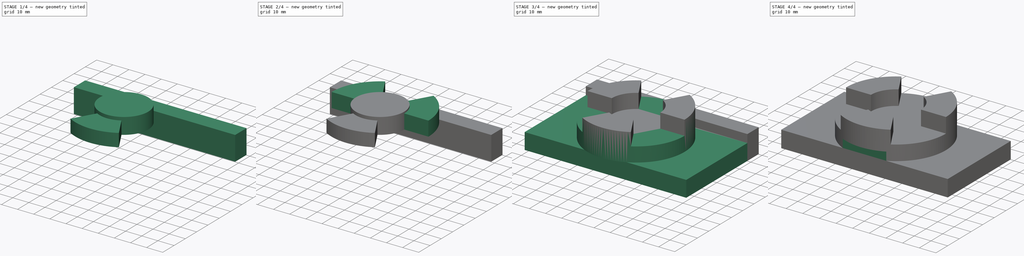
[diagram: build sequence overview — one tinted view per stage of 4, left to right]
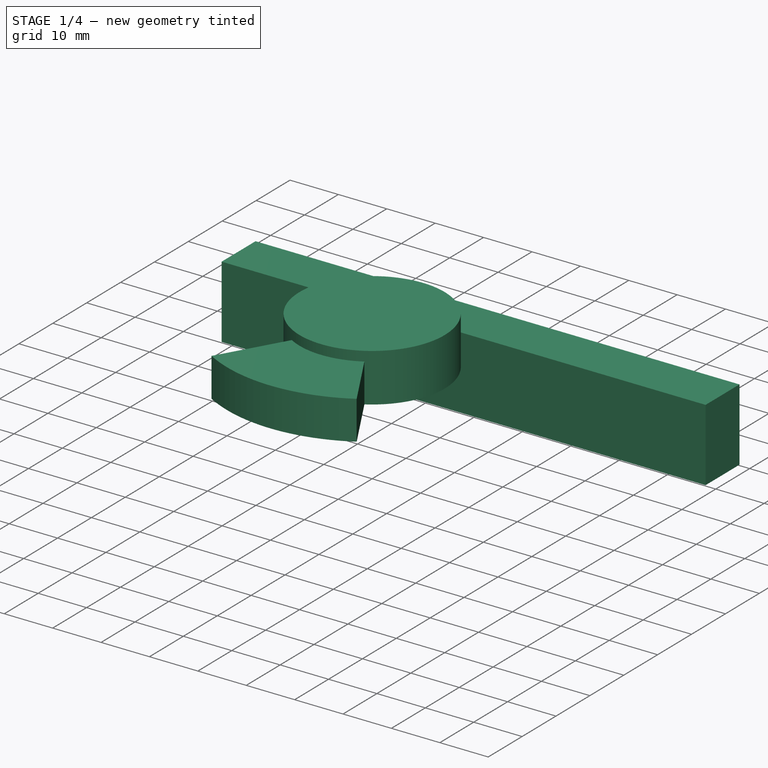
[diagram: stage 1 of 4 — iso view after this stage's code; geometry added in this stage tinted green]
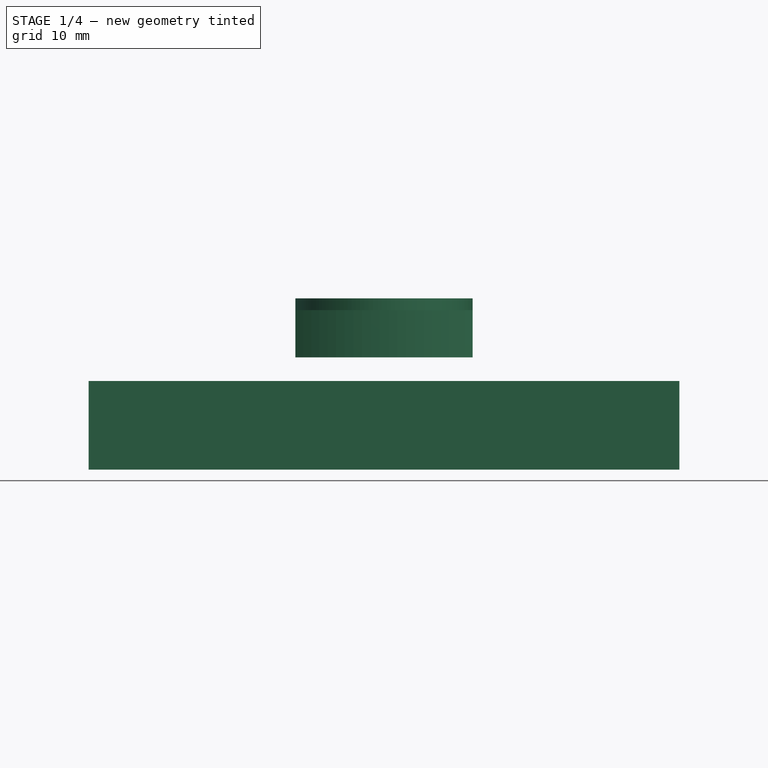
[diagram: stage 1 of 4 — front view after this stage's code; geometry added in this stage tinted green]
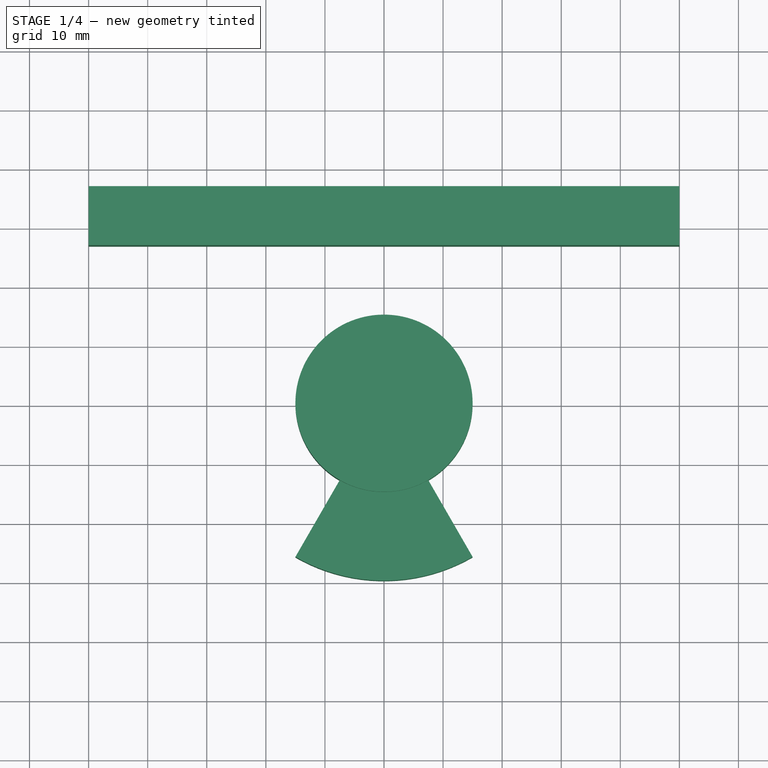
[diagram: stage 1 of 4 — top view after this stage's code; geometry added in this stage tinted green]
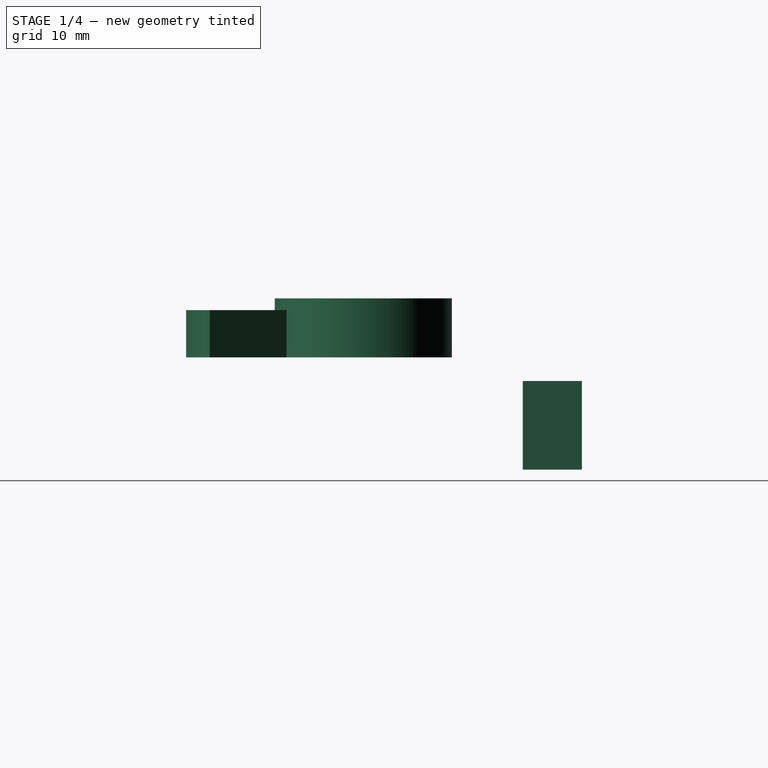
[diagram: stage 1 of 4 — right view after this stage's code; geometry added in this stage tinted green]
FCSTD DOCUMENT  (FreeCAD 0.16R6700 (Git))
Label: ejer6
License: All rights reserved
LicenseURL: http://en.wikipedia.org/wiki/All_rights_reserved
objects: Part::Cylinder×5, Part::Cut×3, Part::MultiFuse×2, Part::Box×2, Sketcher::SketchObject×1, PartDesign::Pad×1, Part::Feature×1
note: 16 computed .brp shape members not serialized (recipe doc carries the construction recipe); baked Part::Feature solids carry a one-line shape summary decoded from their .brp

FEATURE [Part::Cylinder] Cylinder003  label="Cilindro003"
  Angle = 60
  Height = 8
  Placement = pos=(0,0,19) rot=(0,0,1;4.18879rad)
  Radius = 30
FEATURE [Part::Cylinder] Cylinder004  label="Cilindro004"
  Angle = 360
  Height = 10
  Placement = pos=(0,0,19) rot=(0,0,1;0rad)
  Radius = 15
FEATURE [Part::Box] Box001  label="Cubo001"
  Height = 15
  Length = 100
  Placement = pos=(-50,27,0) rot=(0,0,1;0rad)
  Width = 10
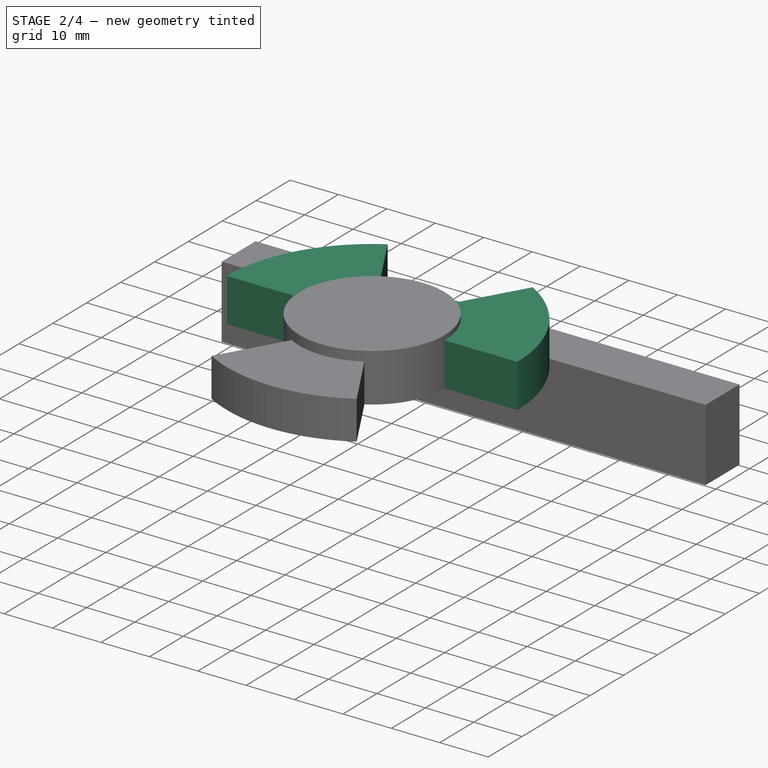
[diagram: stage 2 of 4 — iso view after this stage's code; geometry added in this stage tinted green]
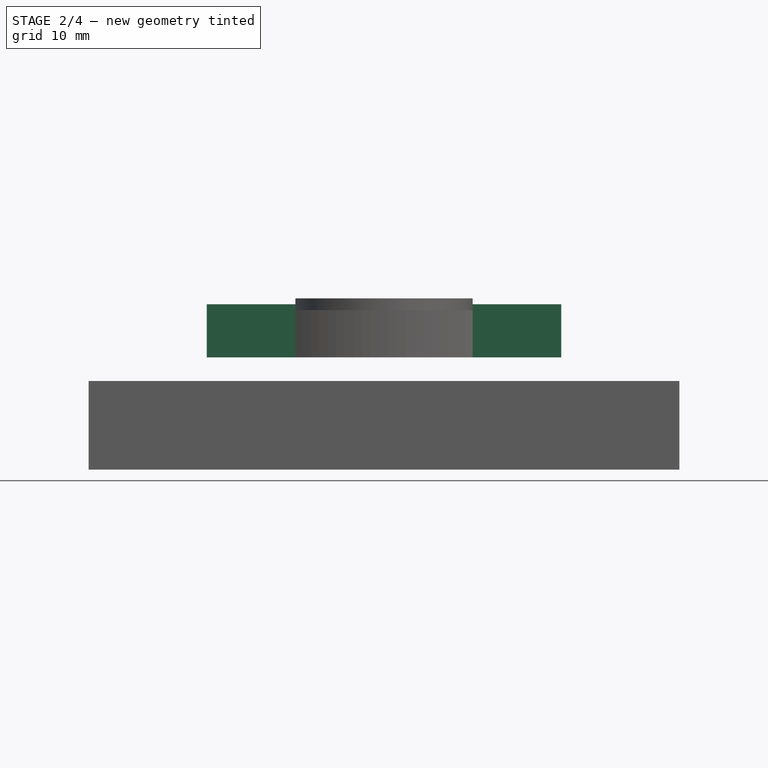
[diagram: stage 2 of 4 — front view after this stage's code; geometry added in this stage tinted green]
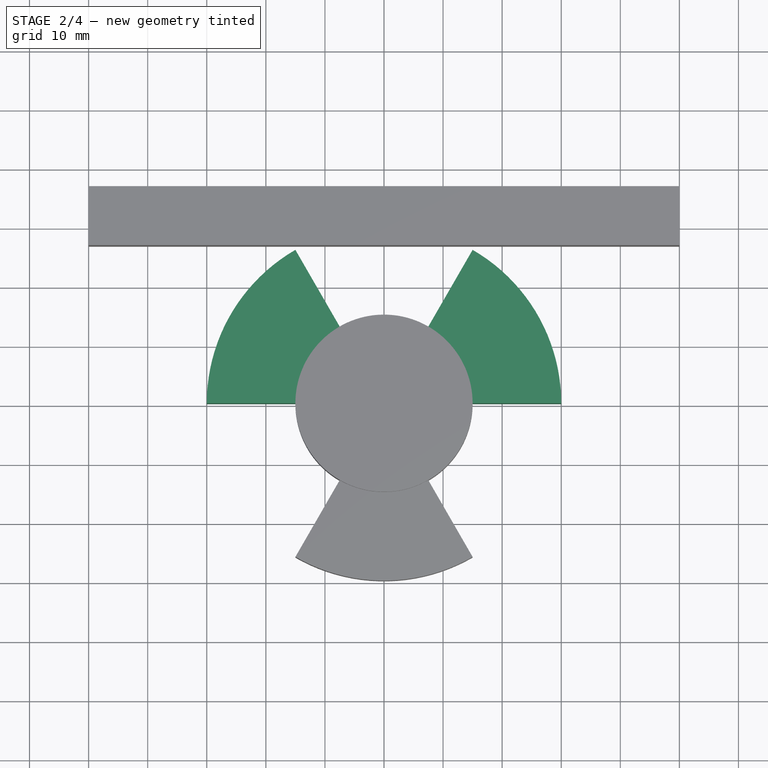
[diagram: stage 2 of 4 — top view after this stage's code; geometry added in this stage tinted green]
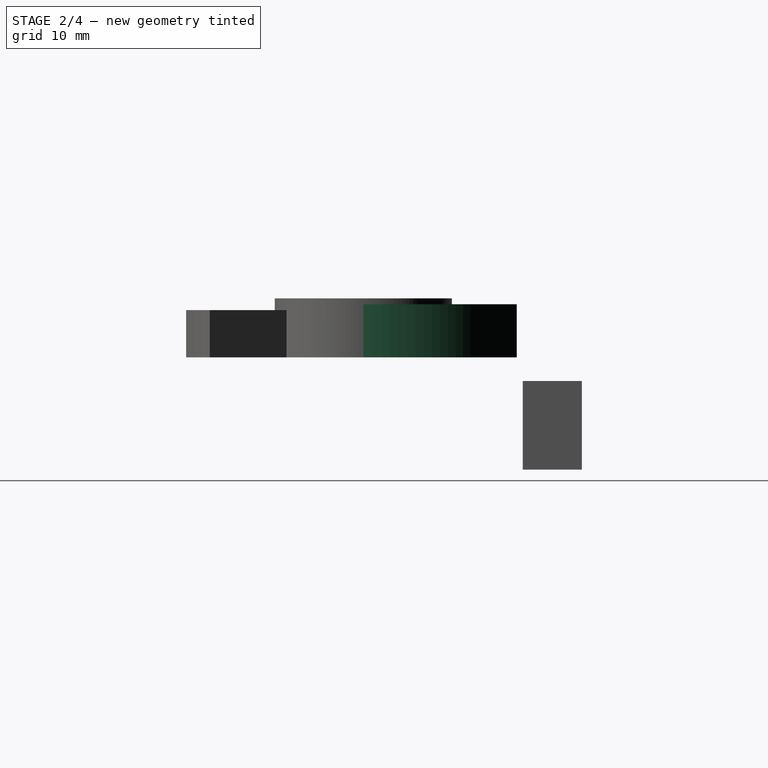
[diagram: stage 2 of 4 — right view after this stage's code; geometry added in this stage tinted green]
FEATURE [Part::Cylinder] Cylinder001  label="Cilindro001"
  Angle = 60
  Height = 9
  Placement = pos=(0,0,19) rot=(0,0,1;0rad)
  Radius = 30
FEATURE [Part::Cylinder] Cylinder002  label="Cilindro002"
  Angle = 60
  Height = 9
  Placement = pos=(0,0,19) rot=(0,0,1;2.0944rad)
  Radius = 30
FEATURE [Part::MultiFuse] Fusion
  Shapes = -> [Cylinder003,Cylinder001,Cylinder002]
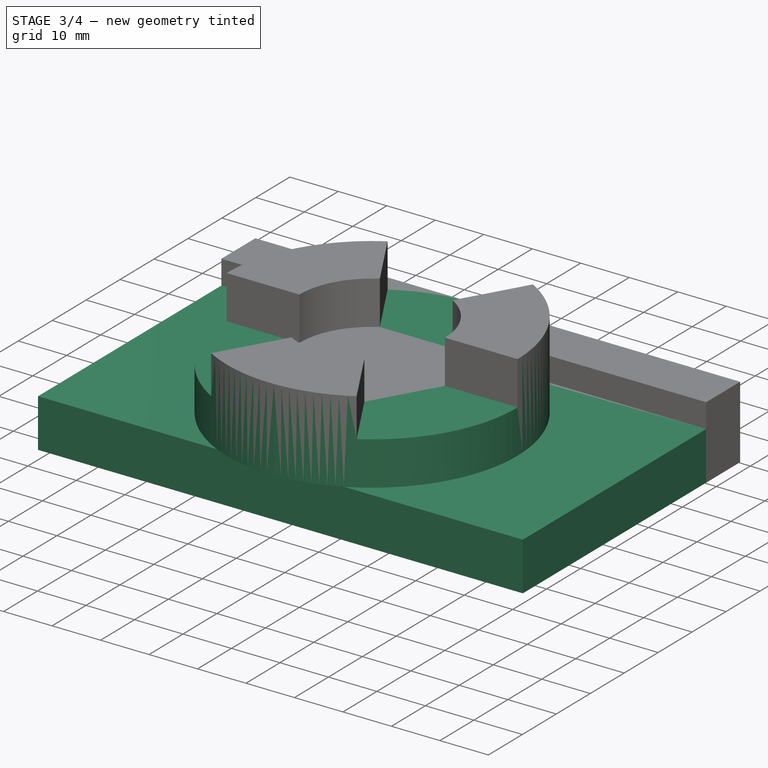
[diagram: stage 3 of 4 — iso view after this stage's code; geometry added in this stage tinted green]
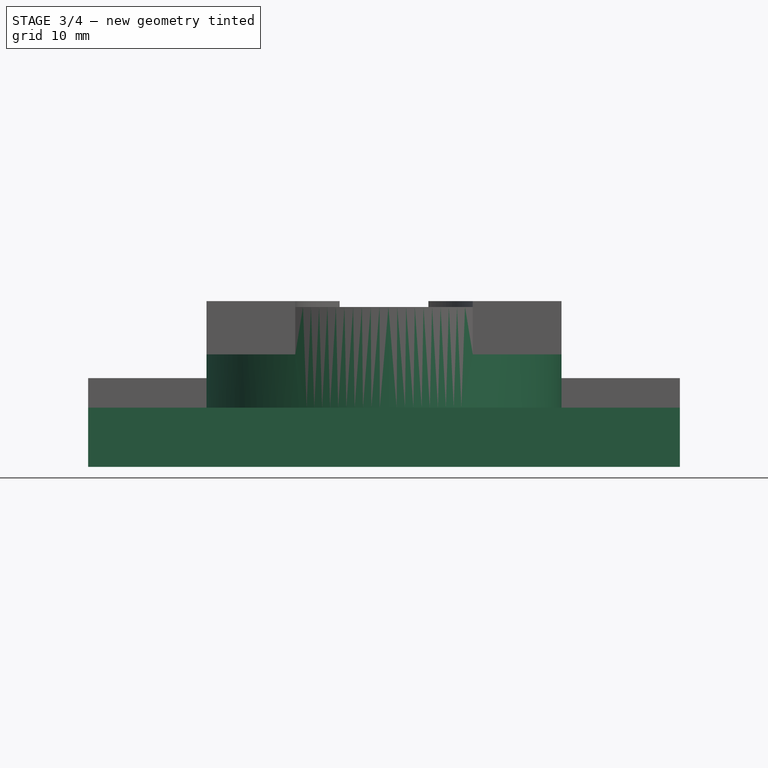
[diagram: stage 3 of 4 — front view after this stage's code; geometry added in this stage tinted green]
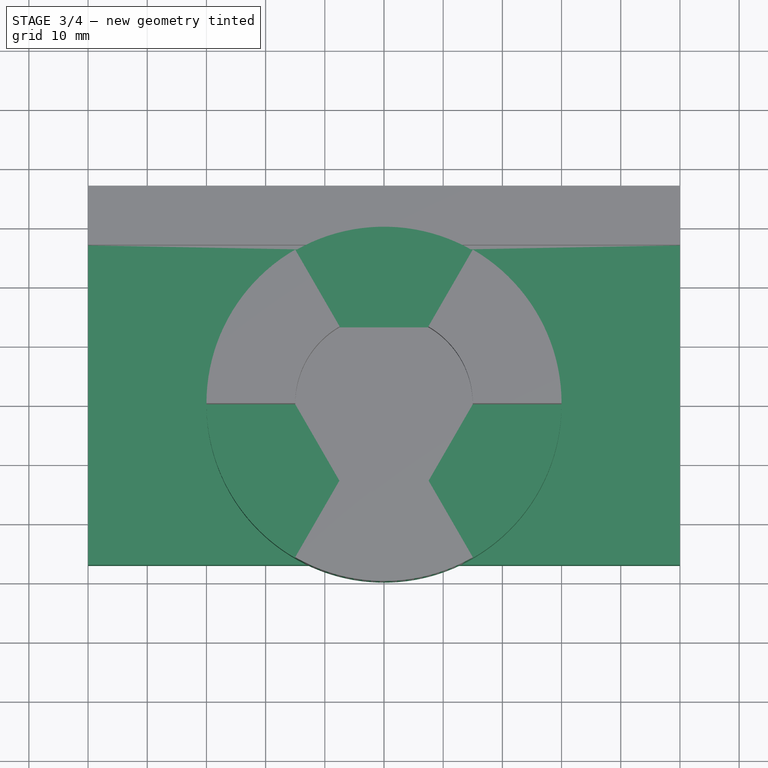
[diagram: stage 3 of 4 — top view after this stage's code; geometry added in this stage tinted green]
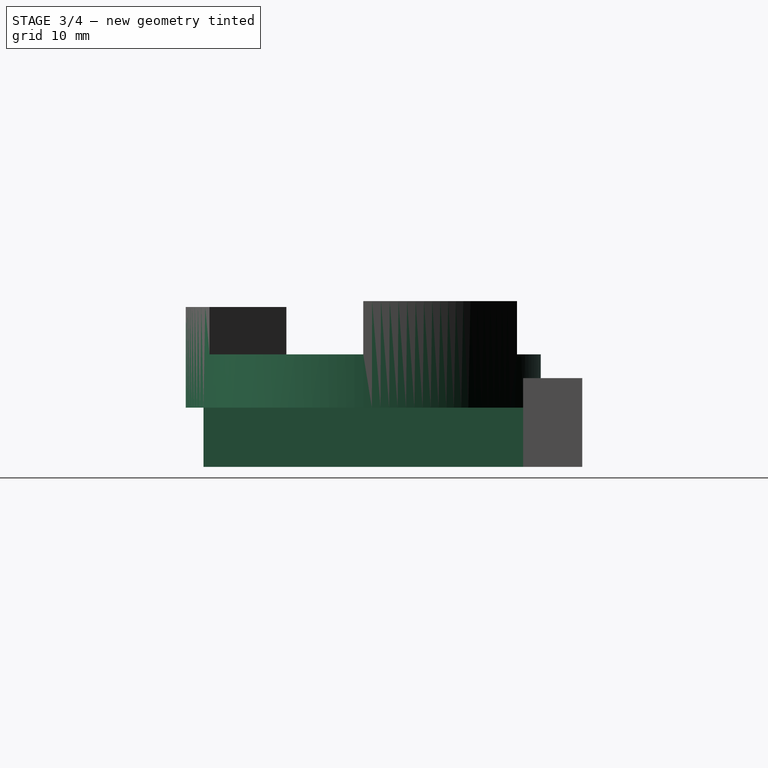
[diagram: stage 3 of 4 — right view after this stage's code; geometry added in this stage tinted green]
FEATURE [Sketcher::SketchObject] Sketch
  sketch-geometry (4):
    g0: LineSegment StartX=-50 StartY=27 StartZ=0 EndX=50 EndY=27 EndZ=0
    g1: LineSegment StartX=50 StartY=27 StartZ=0 EndX=50 EndY=-27 EndZ=0
    g2: LineSegment StartX=50 StartY=-27 StartZ=0 EndX=-50 EndY=-27 EndZ=0
    g3: LineSegment StartX=-50 StartY=-27 StartZ=0 EndX=-50 EndY=27 EndZ=0
  constraints (12):
    c: Coincident(g0,g1)
    c: Coincident(g1,g2)
    c: Coincident(g2,g3)
    c: Coincident(g3,g0)
    c: Horizontal(g0)
    c: Horizontal(g2)
    c: Vertical(g1)
    c: Vertical(g3)
    c: DistanceY(g3,g3) = 54
    c: DistanceX(g0,g0) = 100
    c: Symmetric(g0,g0,g-2)
    c: Symmetric(g0,g1,g-1)
FEATURE [PartDesign::Pad] Pad
  Length = 10
  Length2 = 100
  Sketch = -> Sketch
  Type = 0
FEATURE [Part::Cylinder] Cylinder  label="Cilindro"
  Angle = 360
  Height = 9
  Placement = pos=(0,0,10) rot=(0,0,1;0rad)
  Radius = 30
FEATURE [Part::Cut] Cut
  Base = -> Fusion
  Tool = -> Cylinder004
FEATURE [Part::MultiFuse] Fusion001
  Shapes = -> [Cut,Cylinder,Pad]
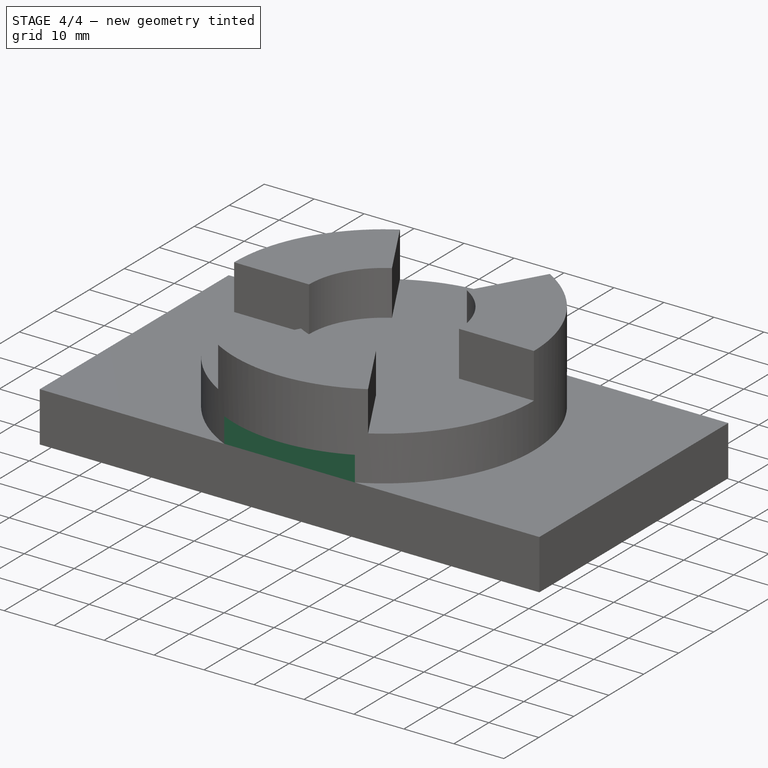
[diagram: stage 4 of 4 — iso view after this stage's code; geometry added in this stage tinted green]
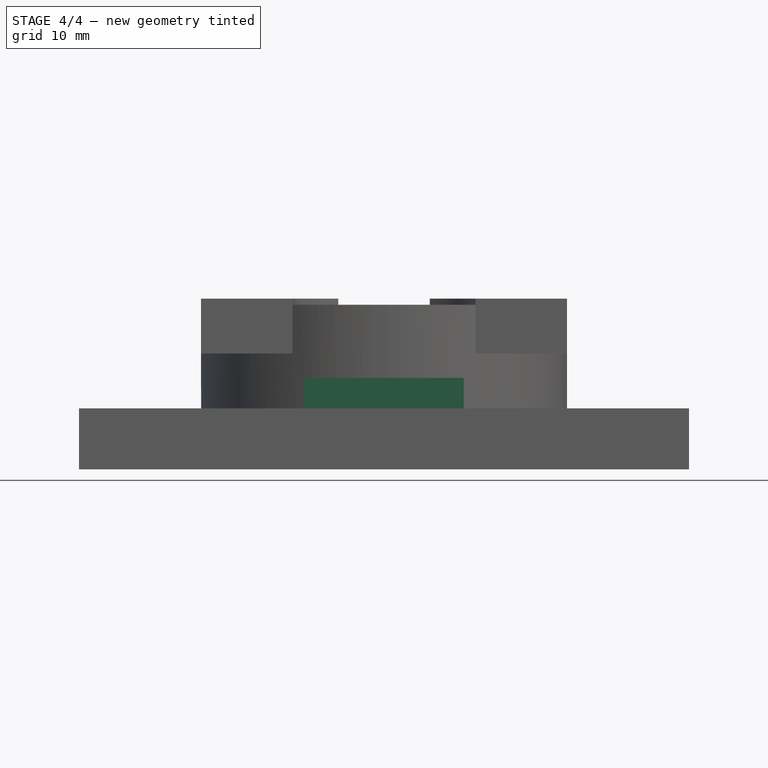
[diagram: stage 4 of 4 — front view after this stage's code; geometry added in this stage tinted green]
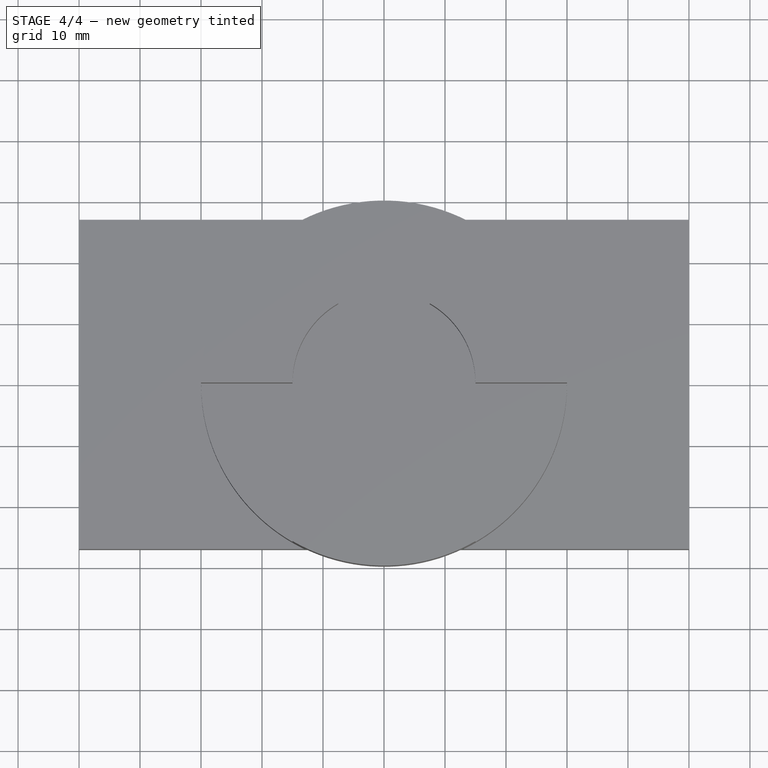
[diagram: stage 4 of 4 — top view after this stage's code; geometry added in this stage tinted green]
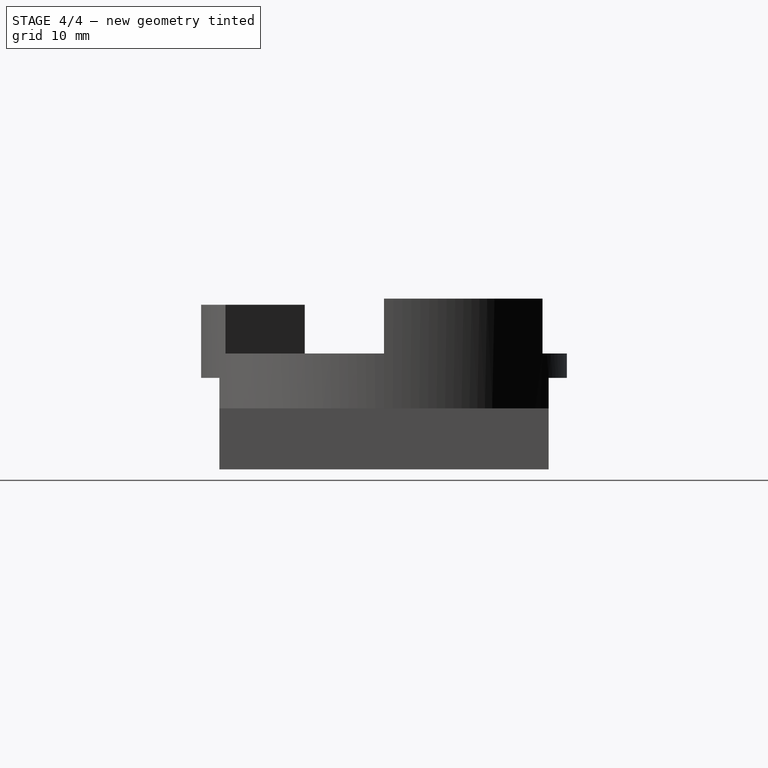
[diagram: stage 4 of 4 — right view after this stage's code; geometry added in this stage tinted green]
FEATURE [Part::Box] Box  label="Cubo"
  Height = 15
  Length = 100
  Placement = pos=(-50,-37,0) rot=(0,0,1;0rad)
  Width = 10
FEATURE [Part::Cut] Cut001
  Base = -> Fusion001
  Tool = -> Box001
FEATURE [Part::Cut] Cut002
  Base = -> Cut001
  Tool = -> Box
FEATURE [Part::Feature] Cut002001  label="Cut003"
  Placement = pos=(0,0,0) rot=(0.538537,-0.813066,-0.221137;0.917811rad)
  shape: bbox 79.27 x 85.14 x 93.08 mm, 23 faces (baked)
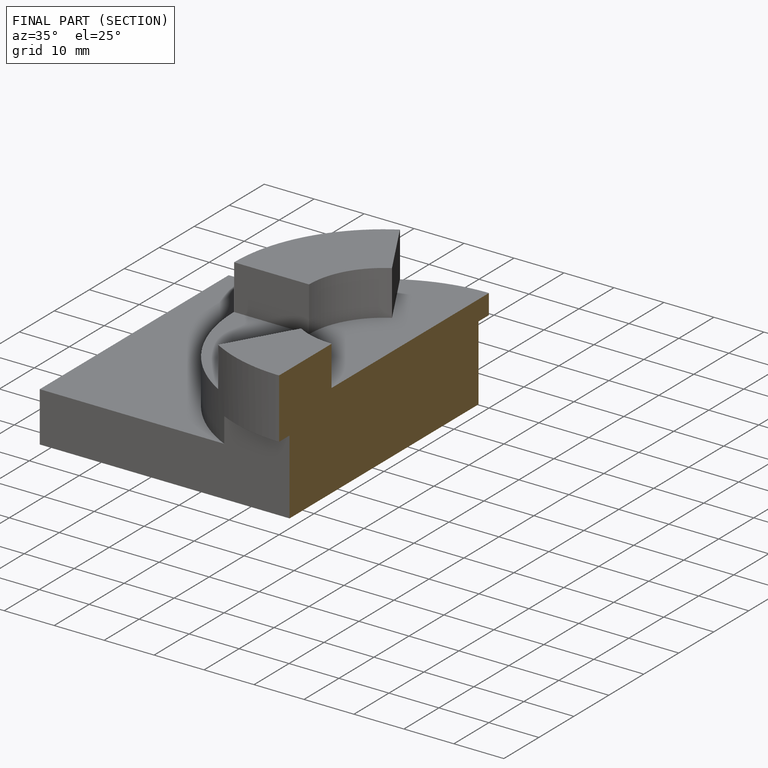
[diagram: finished part — half-section view (interior)]
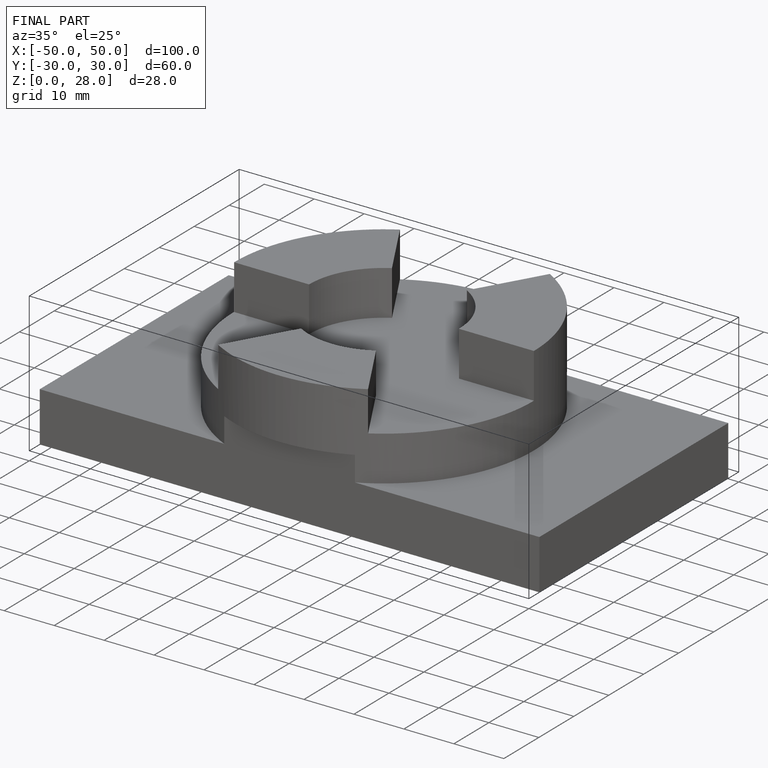
[diagram: finished part — iso view with bounding-box wireframe]
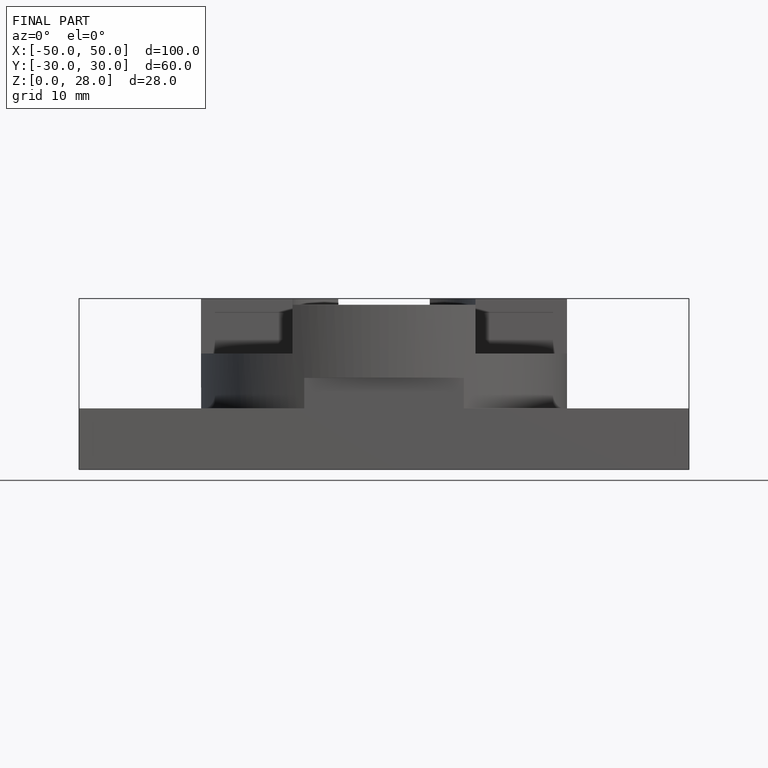
[diagram: finished part — front view with bounding-box wireframe]
